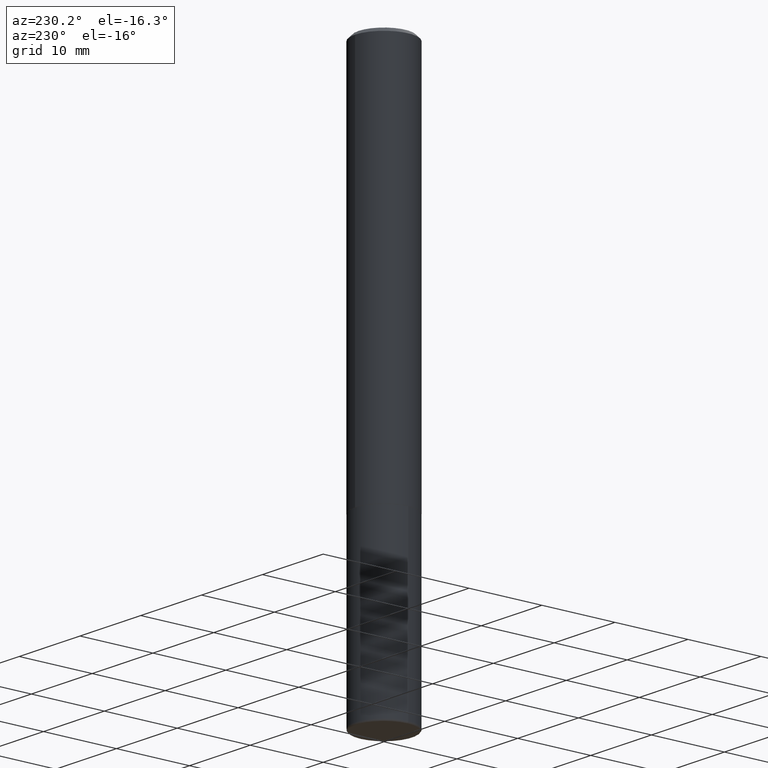
[diagram: clean part render]
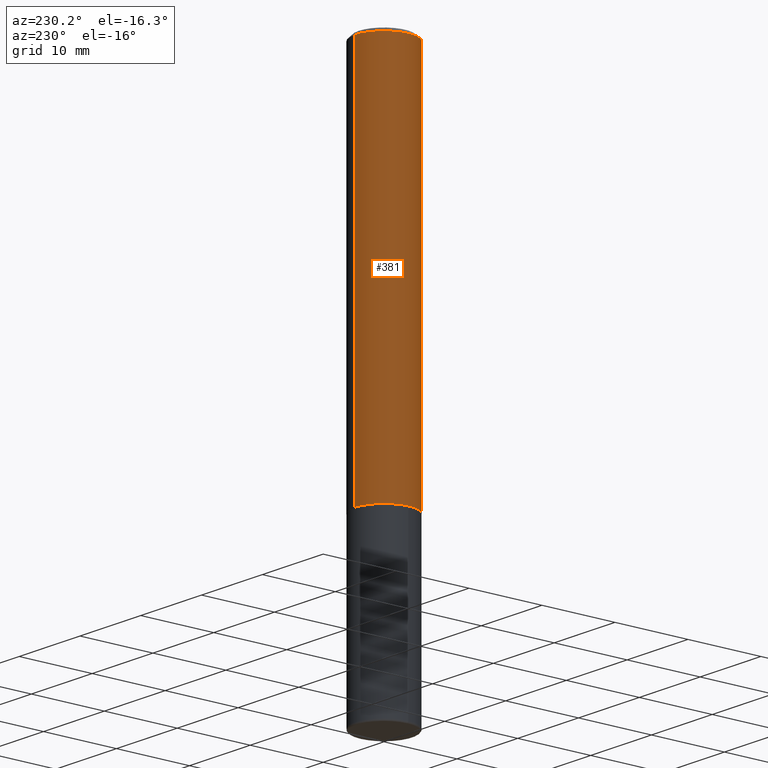
[diagram: same view with one face highlighted and labeled with its STEP entity id]
A machine part, auxiliary view. The second image highlights one B-rep face of the part: STEP entity #381.
In plain terms, the highlighted cylindrical surface (partial cylindrical patch) has radius 3.9688 mm, axis along (-0, 0, 1).
Its self-contained STEP definition (entity closure, byte-faithful):
#3 = EDGE_LOOP ( 'NONE', ( #252, #223, #54, #193 ) ) ;
#4 = CYLINDRICAL_SURFACE ( 'NONE', #196, 0.1562500000000001388 ) ;
#21 = DIRECTION ( 'NONE',  ( -2.445176063107630933E-29, 3.491900563592034843E-15, 1.000000000000000000 ) ) ;
#30 = DIRECTION ( 'NONE',  ( -6.982962677686265922E-15, -1.000000000000000000, 3.491900563592035238E-15 ) ) ;
#38 = VERTEX_POINT ( 'NONE', #313 ) ;
#39 = EDGE_CURVE ( 'NONE', #38, #198, #278, .T. ) ;
#45 = CIRCLE ( 'NONE', #86, 0.1562500000000000000 ) ;
#54 = ORIENTED_EDGE ( 'NONE', *, *, #39, .T. ) ;
#63 = FACE_OUTER_BOUND ( 'NONE', #3, .T. ) ;
#68 = VECTOR ( 'NONE', #395, 39.37007874015748143 ) ;
#79 = CARTESIAN_POINT ( 'NONE',  ( 4.890352126215269679E-31, -6.983801127184080238E-17, -0.02000000000000003511 ) ) ;
#84 = EDGE_CURVE ( 'NONE', #177, #344, #285, .T. ) ;
#86 = AXIS2_PLACEMENT_3D ( 'NONE', #79, #21, #236 ) ;
#90 = CARTESIAN_POINT ( 'NONE',  ( 0.000000000000000000, 0.000000000000000000, 0.000000000000000000 ) ) ;
#113 = CARTESIAN_POINT ( 'NONE',  ( -1.071952812151801215E-15, -0.1562500000000000833, -0.01999999999999948694 ) ) ;
#123 = EDGE_CURVE ( 'NONE', #177, #38, #330, .T. ) ;
#131 = DIRECTION ( 'NONE',  ( -2.445176063107630933E-29, 3.491900563592034843E-15, 1.000000000000000000 ) ) ;
#149 = VECTOR ( 'NONE', #339, 39.37007874015748143 ) ;
#163 = DIRECTION ( 'NONE',  ( -6.982962677686265922E-15, -1.000000000000000000, 3.496765431890250609E-15 ) ) ;
#177 = VERTEX_POINT ( 'NONE', #246 ) ;
#191 = CARTESIAN_POINT ( 'NONE',  ( 5.040730454096381281E-29, -7.198553011844980434E-15, -2.061500000000000110 ) ) ;
#193 = ORIENTED_EDGE ( 'NONE', *, *, #336, .F. ) ;
#196 = AXIS2_PLACEMENT_3D ( 'NONE', #90, #131, #30 ) ;
#198 = VERTEX_POINT ( 'NONE', #113 ) ;
#223 = ORIENTED_EDGE ( 'NONE', *, *, #123, .T. ) ;
#236 = DIRECTION ( 'NONE',  ( -6.982962677686265133E-15, -1.000000000000000000, 3.496765431890256920E-15 ) ) ;
#246 = CARTESIAN_POINT ( 'NONE',  ( 1.110223024625183362E-15, 0.1562499999999930611, -2.061500000000000554 ) ) ;
#252 = ORIENTED_EDGE ( 'NONE', *, *, #84, .F. ) ;
#259 = CARTESIAN_POINT ( 'NONE',  ( 1.110223024625157329E-15, 0.1562500000000001388, -5.456094630612559989E-16 ) ) ;
#277 = CARTESIAN_POINT ( 'NONE',  ( 1.091087918388479568E-15, 0.1562499999999999445, -0.02000000000000057981 ) ) ;
#278 = LINE ( 'NONE', #413, #149 ) ;
#285 = LINE ( 'NONE', #259, #68 ) ;
#308 = AXIS2_PLACEMENT_3D ( 'NONE', #191, #319, #163 ) ;
#313 = CARTESIAN_POINT ( 'NONE',  ( -1.091087918388430659E-15, -0.1562500000000074940, -2.061499999999999666 ) ) ;
#319 = DIRECTION ( 'NONE',  ( -2.445176063107630933E-29, 3.491900563592034843E-15, 1.000000000000000000 ) ) ;
#330 = CIRCLE ( 'NONE', #308, 0.1562500000000002776 ) ;
#336 = EDGE_CURVE ( 'NONE', #344, #198, #45, .T. ) ;
#339 = DIRECTION ( 'NONE',  ( -2.445176063107631214E-29, 3.491900563592034843E-15, 1.000000000000000000 ) ) ;
#344 = VERTEX_POINT ( 'NONE', #277 ) ;
#381 = ADVANCED_FACE ( 'NONE', ( #63 ), #4, .T. ) ;
#395 = DIRECTION ( 'NONE',  ( -2.445176063107631214E-29, 3.491900563592034843E-15, 1.000000000000000000 ) ) ;
#413 = CARTESIAN_POINT ( 'NONE',  ( -1.091087918388479962E-15, -0.1562500000000001388, 5.456094630612559989E-16 ) ) ;